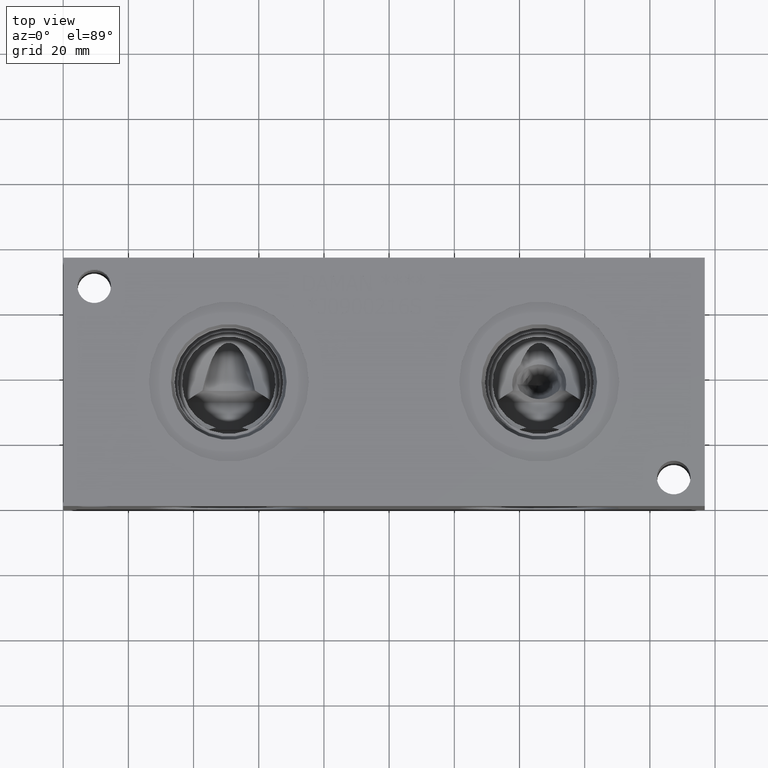
[diagram: clean part render]
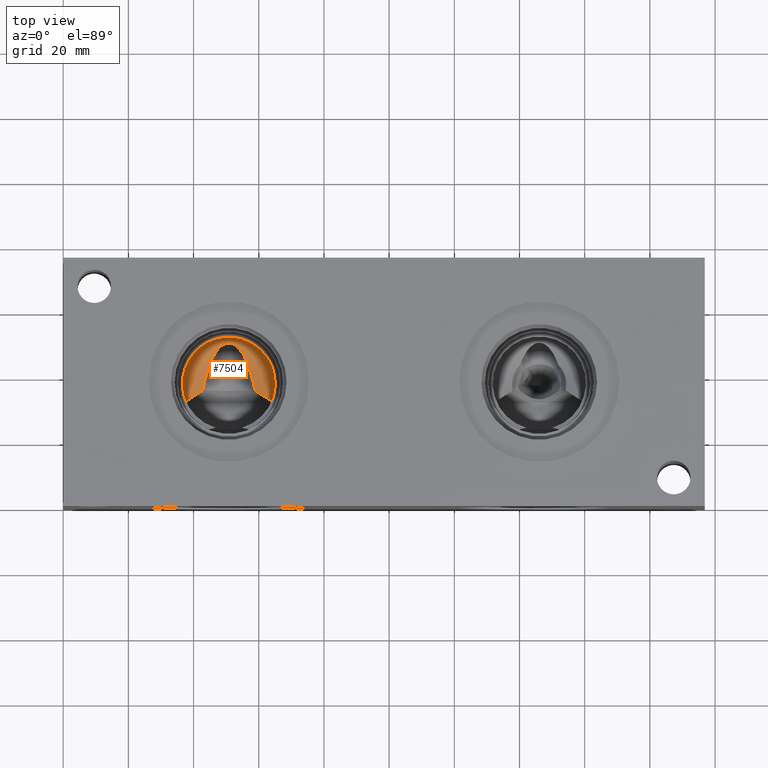
[diagram: same view with one face highlighted and labeled with its STEP entity id]
A machine part, top view. The second image highlights one B-rep face of the part: STEP entity #7504.
In plain terms, the highlighted conical surface has half-angle 60 deg.
Its self-contained STEP definition (entity closure, byte-faithful):
#90=CONICAL_SURFACE('',#7889,7.14375,1.0471975511966);
#172=CIRCLE('',#7890,14.2875);
#472=B_SPLINE_CURVE_WITH_KNOTS('',3,(#12867,#12868,#12869,#12870,#12871,
#12872),.UNSPECIFIED.,.F.,.F.,(4,2,4),(4.45335090104232,4.77669847874652,
5.11701378479271),.UNSPECIFIED.);
#473=B_SPLINE_CURVE_WITH_KNOTS('',3,(#12877,#12878,#12879,#12880,#12881,
#12882),.UNSPECIFIED.,.F.,.F.,(4,2,4),(1.89337674021754,2.43211366563737,
2.55887435411011),.UNSPECIFIED.);
#476=B_SPLINE_CURVE_WITH_KNOTS('',3,(#12904,#12905,#12906,#12907,#12908,
#12909,#12910,#12911,#12912,#12913,#12914,#12915,#12916,#12917,#12918,#12919,
#12920,#12921,#12922,#12923,#12924,#12925,#12926,#12927,#12928,#12929,#12930,
#12931,#12932,#12933),.UNSPECIFIED.,.F.,.F.,(4,2,2,2,2,2,2,2,2,2,2,2,2,
2,4),(3.18507305660321,3.50472908035275,3.84992259452474,4.19511610869672,
4.39351915887156,4.59192220904639,4.73879425498675,4.88566630092711,5.03253834686746,
5.17941039280782,5.37781344298266,5.57621649315749,5.92141000732948,6.26660352150146,
6.58625954525101),.UNSPECIFIED.);
#963=FACE_OUTER_BOUND('',#1385,.T.);
#1385=EDGE_LOOP('',(#6520,#6521,#6522,#6523));
#3412=VERTEX_POINT('',#12854);
#3414=VERTEX_POINT('',#12861);
#3415=VERTEX_POINT('',#12866);
#3417=VERTEX_POINT('',#12875);
#4426=EDGE_CURVE('',#3415,#3414,#472,.T.);
#4429=EDGE_CURVE('',#3412,#3417,#473,.T.);
#4437=EDGE_CURVE('',#3415,#3417,#476,.T.);
#4493=EDGE_CURVE('',#3414,#3412,#172,.T.);
#6520=ORIENTED_EDGE('',*,*,#4429,.T.);
#6521=ORIENTED_EDGE('',*,*,#4437,.F.);
#6522=ORIENTED_EDGE('',*,*,#4426,.T.);
#6523=ORIENTED_EDGE('',*,*,#4493,.T.);
#7504=ADVANCED_FACE('',(#963),#90,.F.);
#7889=AXIS2_PLACEMENT_3D('',#13059,#9299,#9300);
#7890=AXIS2_PLACEMENT_3D('',#13060,#9301,#9302);
#9299=DIRECTION('center_axis',(0.,0.,1.));
#9300=DIRECTION('ref_axis',(-1.83697019872103E-16,1.,0.));
#9301=DIRECTION('center_axis',(0.,0.,1.));
#9302=DIRECTION('ref_axis',(1.,0.,0.));
#12854=CARTESIAN_POINT('',(37.5939279606238,32.6472651319905,43.55194));
#12861=CARTESIAN_POINT('',(64.0060720393762,32.6472651319905,43.55194));
#12866=CARTESIAN_POINT('',(58.8498803540737,36.1083665239639,40.0907815782702));
#12867=CARTESIAN_POINT('Ctrl Pts',(58.8498803540759,36.1083665239681,40.090781578271));
#12868=CARTESIAN_POINT('Ctrl Pts',(59.6792396062155,35.5687415248753,40.6304229961517));
#12869=CARTESIAN_POINT('Ctrl Pts',(60.5122481421371,35.0144791043054,41.1846961982086));
#12870=CARTESIAN_POINT('Ctrl Pts',(62.2311632392829,33.8584287242466,42.340764389601));
#12871=CARTESIAN_POINT('Ctrl Pts',(63.1172932737759,33.2555981855868,42.9436015180507));
#12872=CARTESIAN_POINT('Ctrl Pts',(64.0060720393762,32.6472651319905,43.55194));
#12875=CARTESIAN_POINT('',(42.7501196459263,36.1083665239639,40.0907815782702));
#12877=CARTESIAN_POINT('Ctrl Pts',(37.5939279606238,32.6472651319905,43.55194));
#12878=CARTESIAN_POINT('Ctrl Pts',(38.9918521385019,33.6040875907835,42.59510900317));
#12879=CARTESIAN_POINT('Ctrl Pts',(40.3850471967107,34.5496436469458,41.6495422088829));
#12880=CARTESIAN_POINT('Ctrl Pts',(42.0983555154774,35.682335594904,40.5168244730526));
#12881=CARTESIAN_POINT('Ctrl Pts',(42.4243118738979,35.8963787536135,40.3027757986274));
#12882=CARTESIAN_POINT('Ctrl Pts',(42.7501196459241,36.1083665239681,40.090781578271));
#12904=CARTESIAN_POINT('Ctrl Pts',(58.8498803540714,36.1083665239598,40.0907815782696));
#12905=CARTESIAN_POINT('Ctrl Pts',(58.6165992510755,37.2071753412761,39.8076755010111));
#12906=CARTESIAN_POINT('Ctrl Pts',(58.3516819972951,38.3064012730899,39.6214982404342));
#12907=CARTESIAN_POINT('Ctrl Pts',(57.7893952964287,40.4470524040058,39.5082098066397));
#12908=CARTESIAN_POINT('Ctrl Pts',(57.4469325128888,41.6524464537225,39.601916456364));
#12909=CARTESIAN_POINT('Ctrl Pts',(56.6713952838204,43.989825028423,40.0570800864185));
#12910=CARTESIAN_POINT('Ctrl Pts',(56.232973419607,45.12332771023,40.4014523844459));
#12911=CARTESIAN_POINT('Ctrl Pts',(55.4751757582143,46.6800372031357,40.9359622127241));
#12912=CARTESIAN_POINT('Ctrl Pts',(55.1433759014189,47.2865659534888,41.1606485873492));
#12913=CARTESIAN_POINT('Ctrl Pts',(54.378676910647,48.4268417097788,41.604559271864));
#12914=CARTESIAN_POINT('Ctrl Pts',(53.9445877811139,48.9601489188681,41.8228619696992));
#12915=CARTESIAN_POINT('Ctrl Pts',(53.1312010941684,49.7115221630073,42.1366298083526));
#12916=CARTESIAN_POINT('Ctrl Pts',(52.7138269822474,50.0230959243673,42.2693938594917));
#12917=CARTESIAN_POINT('Ctrl Pts',(51.7941452752315,50.4630263528795,42.4584589106141));
#12918=CARTESIAN_POINT('Ctrl Pts',(51.2895734864679,50.5875136803248,42.5127174137979));
#12919=CARTESIAN_POINT('Ctrl Pts',(50.3104265135321,50.5875136803248,42.5127174137979));
#12920=CARTESIAN_POINT('Ctrl Pts',(49.8058547247685,50.4630263528795,42.4584589106141));
#12921=CARTESIAN_POINT('Ctrl Pts',(48.8861730177526,50.0230959243673,42.2693938594917));
#12922=CARTESIAN_POINT('Ctrl Pts',(48.4687989058316,49.7115221630073,42.1366298083526));
#12923=CARTESIAN_POINT('Ctrl Pts',(47.6554122188861,48.9601489188681,41.8228619696991));
#12924=CARTESIAN_POINT('Ctrl Pts',(47.221323089353,48.4268417097788,41.604559271864));
#12925=CARTESIAN_POINT('Ctrl Pts',(46.4566240985811,47.2865659534888,41.1606485873492));
#12926=CARTESIAN_POINT('Ctrl Pts',(46.1248242417857,46.6800372031357,40.9359622127241));
#12927=CARTESIAN_POINT('Ctrl Pts',(45.367026580393,45.12332771023,40.4014523844459));
#12928=CARTESIAN_POINT('Ctrl Pts',(44.9286047161796,43.989825028423,40.0570800864185));
#12929=CARTESIAN_POINT('Ctrl Pts',(44.1530674871112,41.6524464537225,39.601916456364));
#12930=CARTESIAN_POINT('Ctrl Pts',(43.8106047035713,40.4470524040058,39.5082098066397));
#12931=CARTESIAN_POINT('Ctrl Pts',(43.2483180027049,38.3064012730899,39.6214982404342));
#12932=CARTESIAN_POINT('Ctrl Pts',(42.9834007489245,37.2071753412761,39.8076755010111));
#12933=CARTESIAN_POINT('Ctrl Pts',(42.7501196459286,36.1083665239598,40.0907815782696));
#13059=CARTESIAN_POINT('Origin',(50.8,38.1,39.4274940144766));
#13060=CARTESIAN_POINT('Origin',(50.8,38.1,43.55194));